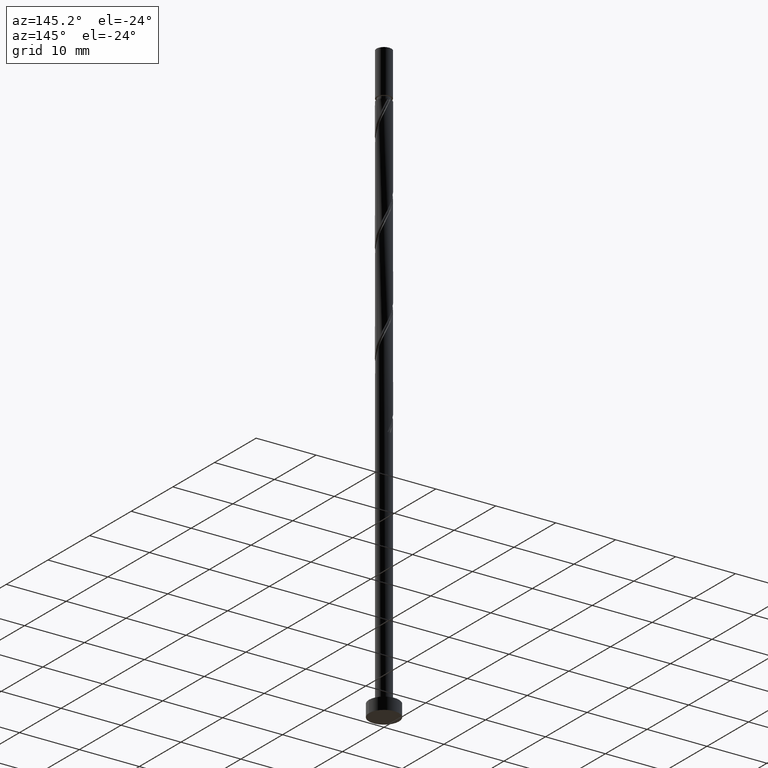
[diagram: clean part render]
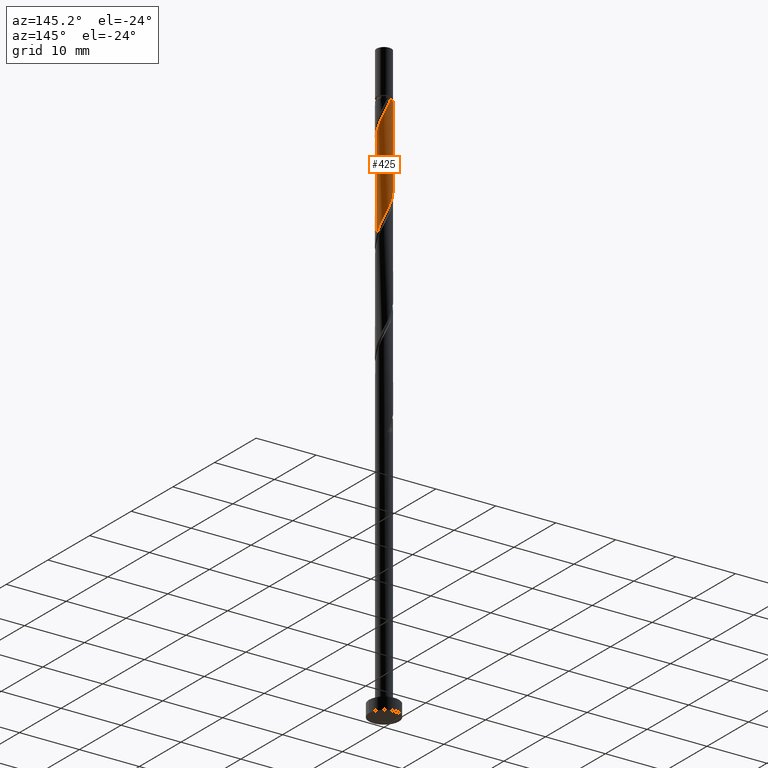
[diagram: same view with one face highlighted and labeled with its STEP entity id]
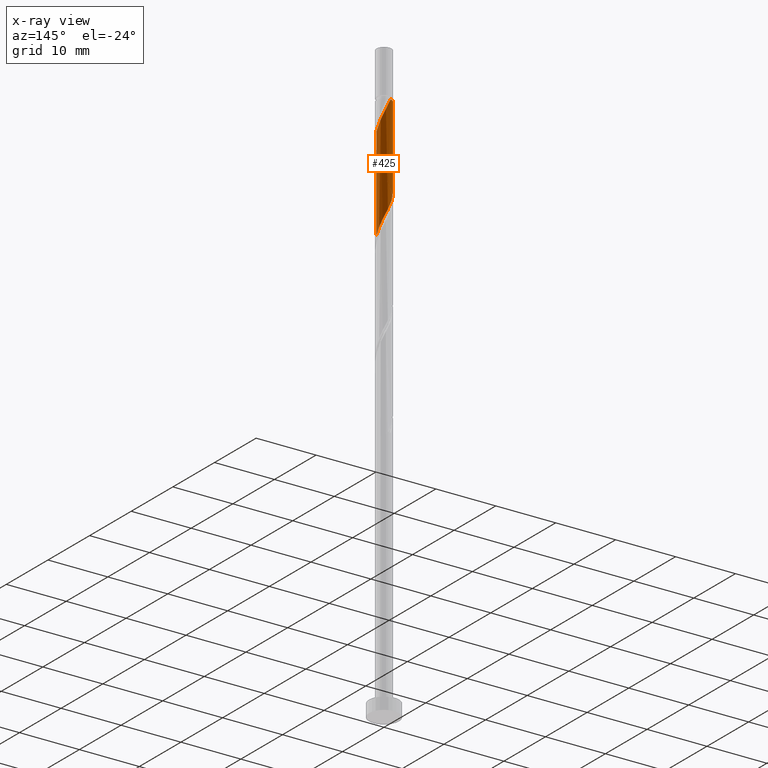
[diagram: x-ray of the same camera — body ghosted, the highlighted face saturated]
A machine part, auxiliary view. The second image highlights one B-rep face of the part: STEP entity #425.
The next image is the same camera in x-ray: the body ghosted, the highlighted face saturated — about 0% of this face is hidden behind the body in this view.
In plain terms, the highlighted cylindrical surface (edge-blend (fillet) strip) has radius 1.25 mm, axis along (-0, -0, -1).
Its self-contained STEP definition (entity closure, byte-faithful):
#41 = VERTEX_POINT ( 'NONE', #212 ) ;
#54 = CARTESIAN_POINT ( 'NONE',  ( 0.4647474106445247388, 1.181139217343034176, 75.18134078052129610 ) ) ;
#62 = CARTESIAN_POINT ( 'NONE',  ( 0.000000000000000000, 0.000000000000000000, 100.0000000000000000 ) ) ;
#64 = ORIENTED_EDGE ( 'NONE', *, *, #690, .T. ) ;
#79 = FACE_OUTER_BOUND ( 'NONE', #1067, .T. ) ;
#82 = ORIENTED_EDGE ( 'NONE', *, *, #853, .F. ) ;
#103 = LINE ( 'NONE', #939, #1011 ) ;
#162 = AXIS2_PLACEMENT_3D ( 'NONE', #1086, #630, #834 ) ;
#166 = CARTESIAN_POINT ( 'NONE',  ( -1.249999999999999778, 2.638594966345117535E-15, 80.34182529847301169 ) ) ;
#173 = CARTESIAN_POINT ( 'NONE',  ( -1.250000000000000666, 0.000000000000000000, 92.31097041015092941 ) ) ;
#189 = CARTESIAN_POINT ( 'NONE',  ( -1.243897599560038314, 0.2525841805325140244, 79.81097041015094362 ) ) ;
#212 = CARTESIAN_POINT ( 'NONE',  ( -0.2487468592766547693, 1.225000000000001199, 92.31097041015090099 ) ) ;
#219 = EDGE_CURVE ( 'NONE', #1177, #1003, #811, .T. ) ;
#286 = CARTESIAN_POINT ( 'NONE',  ( 0.8406931167152514872, 0.9509548306592183753, 74.25541485459535807 ) ) ;
#290 = CARTESIAN_POINT ( 'NONE',  ( 1.250000000000001776, 5.770175828737692961E-16, 87.61344885516218994 ) ) ;
#335 = CARTESIAN_POINT ( 'NONE',  ( 0.1852290874680022348, 1.236199896924351060, 91.38504448422500559 ) ) ;
#352 = DIRECTION ( 'NONE',  ( -0.000000000000000000, -0.000000000000000000, -1.000000000000000000 ) ) ;
#367 = DIRECTION ( 'NONE',  ( -0.000000000000000000, -0.000000000000000000, -1.000000000000000000 ) ) ;
#389 = CARTESIAN_POINT ( 'NONE',  ( -1.249999999999999556, 2.638594966345117535E-15, 80.34182529847301169 ) ) ;
#391 = ORIENTED_EDGE ( 'NONE', *, *, #461, .F. ) ;
#406 = CARTESIAN_POINT ( 'NONE',  ( 1.249999999999999556, 0.2038179647755718749, 72.43841147750532627 ) ) ;
#415 = CARTESIAN_POINT ( 'NONE',  ( -0.7905228623028748292, 0.9930526726327140175, 77.95911855829909598 ) ) ;
#425 = ADVANCED_FACE ( 'NONE', ( #79 ), #962, .T. ) ;
#448 = CARTESIAN_POINT ( 'NONE',  ( 1.249583936253720218, 0.03224881791109665552, 87.68134078052133873 ) ) ;
#450 = AXIS2_PLACEMENT_3D ( 'NONE', #62, #1313, #1423 ) ;
#461 = EDGE_CURVE ( 'NONE', #1003, #587, #912, .T. ) ;
#466 = CARTESIAN_POINT ( 'NONE',  ( 1.250000000000001776, 0.01612709291502388911, 87.64746622909454743 ) ) ;
#493 =( BOUNDED_CURVE ( )  B_SPLINE_CURVE ( 2, ( #571, #466, #448, #1376, #586, #1041, #929, #1278, #709, #1370, #335, #800, #1258 ),
 .UNSPECIFIED., .F., .T. ) 
 B_SPLINE_CURVE_WITH_KNOTS ( ( 3, 2, 2, 2, 2, 2, 3 ),
 ( 0.6795248053855289516, 0.6805555555555555802, 0.6944444444444445308, 0.7083333333333333703, 0.7222222222222224319, 0.7361111111111113825, 0.7500000000000003331 ),
 .UNSPECIFIED. ) 
 CURVE ( )  GEOMETRIC_REPRESENTATION_ITEM ( )  RATIONAL_B_SPLINE_CURVE ( ( 0.9071930855141255856, 0.9080659294509733082, 0.9090909090909135015, 0.8952797754656481866, 0.9090909090909135015, 0.8952797754656481866, 0.9090909090909135015, 0.8952797754656481866, 0.9090909090909135015, 0.8952797754656481866, 0.9090909090909135015, 0.8952797754656478535, 0.9090909090909138346 ) ) 
 REPRESENTATION_ITEM ( '' )  );
#514 = CARTESIAN_POINT ( 'NONE',  ( 0.6527202636798884461, 1.066047024001125720, 74.71837781755833419 ) ) ;
#523 = CARTESIAN_POINT ( 'NONE',  ( 0.2487468592766551856, 1.224999999999999867, 75.64430374348425801 ) ) ;
#571 = CARTESIAN_POINT ( 'NONE',  ( 1.250000000000001776, 5.770175828737692961E-16, 87.61344885516218994 ) ) ;
#586 = CARTESIAN_POINT ( 'NONE',  ( 1.163195058626193878, 0.4576868531950764596, 88.60726670644723413 ) ) ;
#587 = VERTEX_POINT ( 'NONE', #1316 ) ;
#593 = VERTEX_POINT ( 'NONE', #290 ) ;
#629 = CARTESIAN_POINT ( 'NONE',  ( -1.249583936253718219, 0.03224881791109680124, 80.27393337311390553 ) ) ;
#630 = DIRECTION ( 'NONE',  ( -0.000000000000000000, -0.000000000000000000, -1.000000000000000000 ) ) ;
#690 = EDGE_CURVE ( 'NONE', #593, #587, #103, .T. ) ;
#709 = CARTESIAN_POINT ( 'NONE',  ( 0.5968636725738323268, 1.098295841912225068, 90.45911855829911019 ) ) ;
#736 = CARTESIAN_POINT ( 'NONE',  ( -0.9365076899976096936, 0.8279210992451759843, 78.42208152126204368 ) ) ;
#751 = CARTESIAN_POINT ( 'NONE',  ( 0.9779659711581908388, 0.7785130437292726580, 73.79245189163241037 ) ) ;
#770 = CIRCLE ( 'NONE', #162, 1.250000000000000666 ) ;
#800 = CARTESIAN_POINT ( 'NONE',  ( -0.03274630790879041325, 1.268860782656968667, 91.84800744718795329 ) ) ;
#811 = LINE ( 'NONE', #1270, #1214 ) ;
#834 = DIRECTION ( 'NONE',  ( -1.000000000000000000, 0.000000000000000000, 0.000000000000000000 ) ) ;
#835 = ORIENTED_EDGE ( 'NONE', *, *, #219, .F. ) ;
#850 = CARTESIAN_POINT ( 'NONE',  ( -1.082492517692345224, 0.6627895258576387283, 78.88504448422501980 ) ) ;
#853 = EDGE_CURVE ( 'NONE', #593, #41, #493, .T. ) ;
#873 = CARTESIAN_POINT ( 'NONE',  ( 1.250000000000000444, 1.923391942912577386E-16, 72.00849196513968309 ) ) ;
#912 =( BOUNDED_CURVE ( )  B_SPLINE_CURVE ( 2, ( #389, #1416, #629, #189, #1321, #850, #736, #415, #975, #1193, #1201, #1085, #523, #54, #514, #286, #751, #983, #1437, #406, #873 ),
 .UNSPECIFIED., .F., .T. ) 
 B_SPLINE_CURVE_WITH_KNOTS ( ( 3, 2, 2, 2, 2, 2, 2, 2, 2, 2, 3 ),
 ( 0.4295248053855294512, 0.4305555555555555802, 0.4444444444444444198, 0.4583333333333333148, 0.4722222222222222099, 0.4861111111111111049, 0.5000000000000000000, 0.5138888888888888395, 0.5277777777777777901, 0.5416666666666666297, 0.5545248053855289516 ),
 .UNSPECIFIED. ) 
 CURVE ( )  GEOMETRIC_REPRESENTATION_ITEM ( )  RATIONAL_B_SPLINE_CURVE ( ( 0.9071930855141204786, 0.9080659294509678681, 0.9090909090909075063, 0.8952797754656419693, 0.9090909090909075063, 0.8952797754656419693, 0.9090909090909075063, 0.8952797754656419693, 0.9090909090909075063, 0.8952797754656419693, 0.9090909090909075063, 0.8952797754656419693, 0.9090909090909075063, 0.8952797754656419693, 0.9090909090909075063, 0.8952797754656419693, 0.9090909090909075063, 0.8952797754656419693, 0.9090909090909075063, 0.8963047551055821627, 0.9071930855141195904 ) ) 
 REPRESENTATION_ITEM ( '' )  );
#929 = CARTESIAN_POINT ( 'NONE',  ( 0.9365076899976113589, 0.8279210992451773166, 89.53319263237317216 ) ) ;
#939 = CARTESIAN_POINT ( 'NONE',  ( 1.250000000000000000, 1.530808498934191571E-16, 100.0000000000000000 ) ) ;
#962 = CYLINDRICAL_SURFACE ( 'NONE', #450, 1.250000000000000000 ) ;
#975 = CARTESIAN_POINT ( 'NONE',  ( -0.5968636725738306614, 1.098295841912223070, 77.49615559533610565 ) ) ;
#983 = CARTESIAN_POINT ( 'NONE',  ( 1.115238825601130968, 0.6060712567993277178, 73.32948892866943424 ) ) ;
#1003 = VERTEX_POINT ( 'NONE', #166 ) ;
#1011 = VECTOR ( 'NONE', #352, 1000.000000000000000 ) ;
#1027 = EDGE_CURVE ( 'NONE', #1177, #41, #770, .T. ) ;
#1041 = CARTESIAN_POINT ( 'NONE',  ( 1.082492517692347223, 0.6627895258576387283, 89.07022966941019604 ) ) ;
#1067 = EDGE_LOOP ( 'NONE', ( #82, #64, #391, #835, #1307 ) ) ;
#1085 = CARTESIAN_POINT ( 'NONE',  ( 0.03274630790878532011, 1.268860782656966668, 76.10726670644721992 ) ) ;
#1086 = CARTESIAN_POINT ( 'NONE',  ( 0.000000000000000000, 0.000000000000000000, 92.31097041015092941 ) ) ;
#1177 = VERTEX_POINT ( 'NONE', #173 ) ;
#1193 = CARTESIAN_POINT ( 'NONE',  ( -0.4032044828447868823, 1.203539011191732566, 77.03319263237314374 ) ) ;
#1201 = CARTESIAN_POINT ( 'NONE',  ( -0.1852290874680007915, 1.236199896924349062, 76.57022966941018183 ) ) ;
#1214 = VECTOR ( 'NONE', #367, 1000.000000000000000 ) ;
#1258 = CARTESIAN_POINT ( 'NONE',  ( -0.2487468592766547693, 1.225000000000001421, 92.31097041015090099 ) ) ;
#1270 = CARTESIAN_POINT ( 'NONE',  ( -1.250000000000000000, 0.000000000000000000, 100.0000000000000000 ) ) ;
#1278 = CARTESIAN_POINT ( 'NONE',  ( 0.7905228623028762724, 0.9930526726327152387, 89.99615559533610565 ) ) ;
#1307 = ORIENTED_EDGE ( 'NONE', *, *, #1027, .T. ) ;
#1313 = DIRECTION ( 'NONE',  ( -0.000000000000000000, -0.000000000000000000, -1.000000000000000000 ) ) ;
#1316 = CARTESIAN_POINT ( 'NONE',  ( 1.250000000000000444, 1.923391942912577386E-16, 72.00849196513966888 ) ) ;
#1321 = CARTESIAN_POINT ( 'NONE',  ( -1.163195058626191214, 0.4576868531950761820, 79.34800744718798171 ) ) ;
#1370 = CARTESIAN_POINT ( 'NONE',  ( 0.4032044828447884366, 1.203539011191733898, 90.92208152126204368 ) ) ;
#1376 = CARTESIAN_POINT ( 'NONE',  ( 1.243897599560039868, 0.2525841805325139688, 88.14430374348427222 ) ) ;
#1416 = CARTESIAN_POINT ( 'NONE',  ( -1.250000000000000222, 0.01612709291503200415, 80.30780792454065420 ) ) ;
#1423 = DIRECTION ( 'NONE',  ( -1.000000000000000000, 0.000000000000000000, 0.000000000000000000 ) ) ;
#1437 = CARTESIAN_POINT ( 'NONE',  ( 1.185254549274264768, 0.3970789007548241600, 72.86652596570647233 ) ) ;